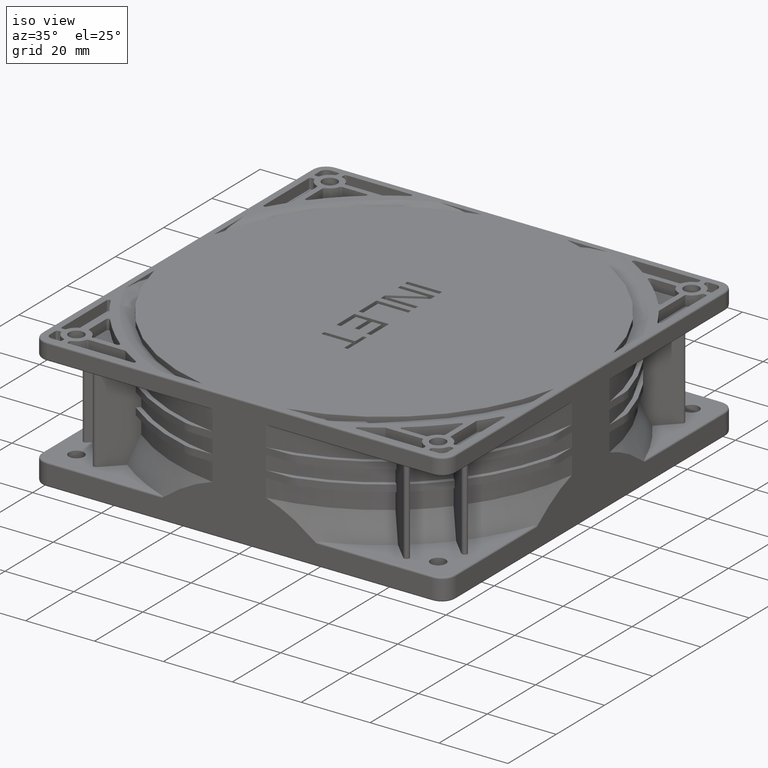
[diagram: clean part render]
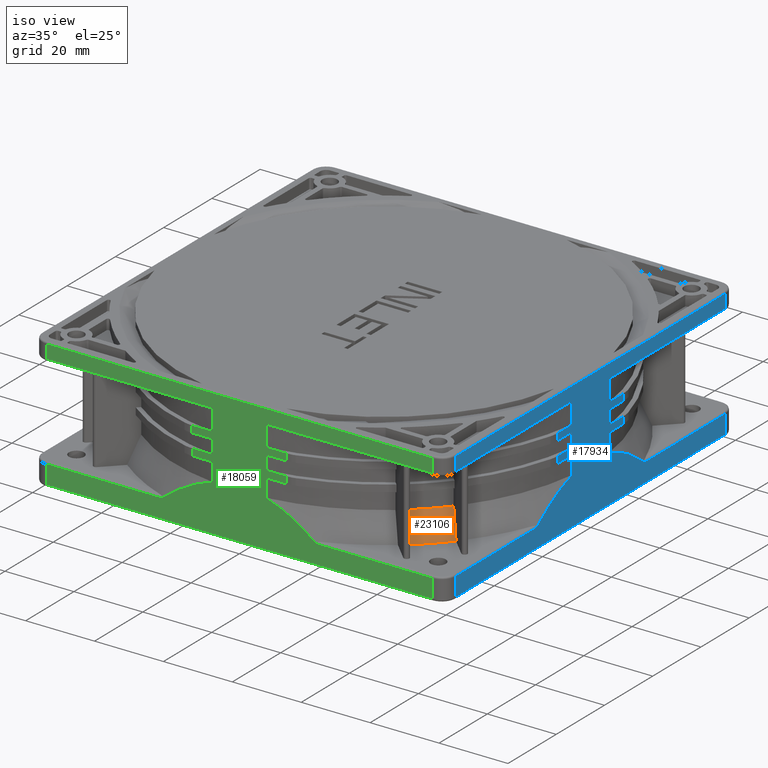
[diagram: same view with three faces highlighted in distinct colors, each labeled with its STEP entity id]
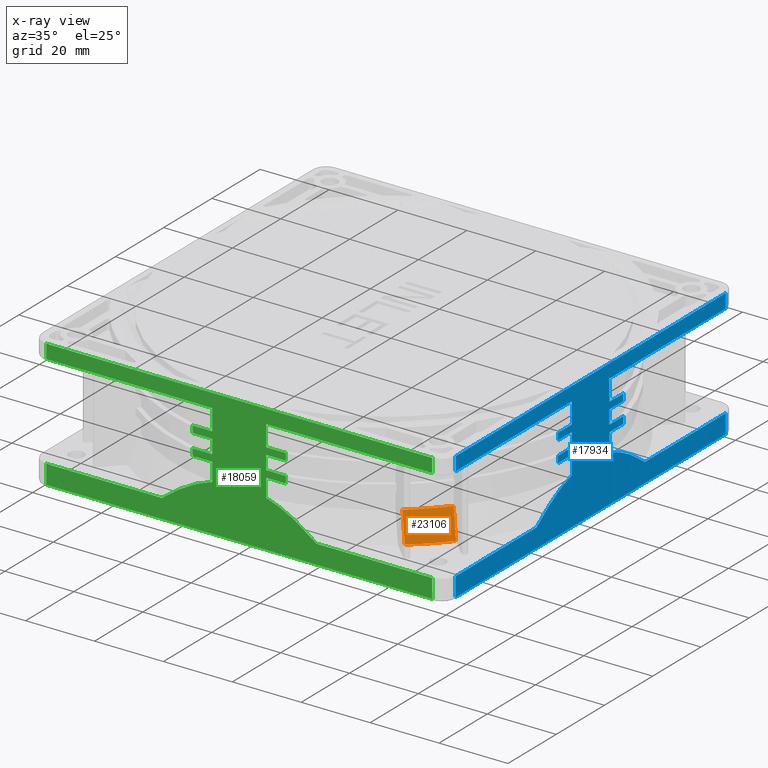
[diagram: x-ray of the same camera — body ghosted, the three highlighted faces saturated]
A machine part, iso view with three faces highlighted in distinct colors.
The next image is the same camera in x-ray (body ghosted, the three faces saturated) — at least one of them is partly hidden behind the body in this view.
Their STEP definitions:

[orange] entity #23106 — the highlighted conical surface has half-angle 23.777 deg.
#6506=CARTESIAN_POINT('',(0.E0,0.E0,-3.15E1));
#6507=DIRECTION('',(0.E0,0.E0,1.E0));
#6508=DIRECTION('',(6.351183784538E-1,-7.724148143E-1,0.E0));
#6509=AXIS2_PLACEMENT_3D('',#6506,#6507,#6508);
#6551=CARTESIAN_POINT('',(4.056038831387E1,-4.932851240058E1,-3.15E1));
#6552=CARTESIAN_POINT('',(4.029493449301E1,-4.906305857972E1,
-3.065192718397E1));
#6553=CARTESIAN_POINT('',(3.976398052172E1,-4.853210460843E1,
-2.895577999237E1));
#6554=CARTESIAN_POINT('',(3.896741004807E1,-4.773553413478E1,
-2.641155483238E1));
#6555=CARTESIAN_POINT('',(3.843626598393E1,-4.720439007064E1,
-2.471540440794E1));
#6556=CARTESIAN_POINT('',(3.817066742353E1,-4.693879151024E1,
-2.386733052655E1));
#6558=CARTESIAN_POINT('',(0.E0,0.E0,-2.386733052655E1));
#6559=DIRECTION('',(0.E0,0.E0,1.E0));
#6560=DIRECTION('',(6.309201227030E-1,-7.758477935577E-1,0.E0));
#6561=AXIS2_PLACEMENT_3D('',#6558,#6559,#6560);
#6563=CARTESIAN_POINT('',(4.693879151024E1,-3.817066742353E1,
-2.386733052655E1));
#6564=CARTESIAN_POINT('',(4.720439007064E1,-3.843626598393E1,
-2.471540440794E1));
#6565=CARTESIAN_POINT('',(4.773553413478E1,-3.896741004807E1,
-2.641155483238E1));
#6566=CARTESIAN_POINT('',(4.853210460843E1,-3.976398052172E1,
-2.895577999238E1));
#6567=CARTESIAN_POINT('',(4.906305857972E1,-4.029493449301E1,
-3.065192718397E1));
#6568=CARTESIAN_POINT('',(4.932851240059E1,-4.056038831388E1,-3.15E1));
#13536=CARTESIAN_POINT('',(4.056038831387E1,-4.932851240058E1,-3.15E1));
#13537=VERTEX_POINT('',#13536);
#13538=CARTESIAN_POINT('',(4.932851240059E1,-4.056038831388E1,-3.15E1));
#13539=VERTEX_POINT('',#13538);
#13590=CARTESIAN_POINT('',(3.817066742353E1,-4.693879151024E1,
-2.386733052655E1));
#13591=VERTEX_POINT('',#13590);
#13595=CARTESIAN_POINT('',(4.693879151024E1,-3.817066742353E1,
-2.386733052655E1));
#13597=VERTEX_POINT('',#13595);
#23094=CARTESIAN_POINT('',(0.E0,0.E0,-2.768366526327E1));
#23095=DIRECTION('',(0.E0,0.E0,-1.E0));
#23096=DIRECTION('',(-1.E0,0.E0,0.E0));
#23097=AXIS2_PLACEMENT_3D('',#23094,#23095,#23096);
#23098=CONICAL_SURFACE('',#23097,6.218136090048E1,2.377682886117E1);
#23100=ORIENTED_EDGE('',*,*,#23099,.T.);
#23101=ORIENTED_EDGE('',*,*,#23085,.T.);
#23102=ORIENTED_EDGE('',*,*,#23074,.T.);
#23103=ORIENTED_EDGE('',*,*,#22985,.F.);
#23104=EDGE_LOOP('',(#23100,#23101,#23102,#23103));
#23105=FACE_OUTER_BOUND('',#23104,.F.);
#23106=ADVANCED_FACE('',(#23105),#23098,.T.);
#6510=CIRCLE('',#6509,6.386272180096E1);
#6557=B_SPLINE_CURVE_WITH_KNOTS('',3,(#6551,#6552,#6553,#6554,#6555,#6556),
.UNSPECIFIED.,.F.,.F.,(4,1,1,4),(0.E0,3.333333333333E-1,6.666666666667E-1,1.E0),
.UNSPECIFIED.);
#6562=CIRCLE('',#6561,6.05E1);
#6569=B_SPLINE_CURVE_WITH_KNOTS('',3,(#6563,#6564,#6565,#6566,#6567,#6568),
.UNSPECIFIED.,.F.,.F.,(4,1,1,4),(0.E0,3.333333333333E-1,6.666666666667E-1,1.E0),
.UNSPECIFIED.);
#22985=EDGE_CURVE('',#13537,#13539,#6510,.T.);
#23074=EDGE_CURVE('',#13597,#13539,#6569,.T.);
#23085=EDGE_CURVE('',#13591,#13597,#6562,.T.);
#23099=EDGE_CURVE('',#13537,#13591,#6557,.T.);

[blue] entity #17934 — the highlighted planar face has unit normal (1, 0, 0).
#1833=DIRECTION('',(0.E0,1.E0,0.E0));
#1834=VECTOR('',#1833,1.12E2);
#1835=CARTESIAN_POINT('',(6.E1,-5.6E1,-3.75E1));
#1836=LINE('',#1835,#1834);
#2247=DIRECTION('',(0.E0,-3.591470555297E-13,1.E0));
#2248=VECTOR('',#2247,5.499999999999E0);
#2249=CARTESIAN_POINT('',(6.E1,5.599999999999E1,-3.75E1));
#2250=LINE('',#2249,#2248);
#2283=CARTESIAN_POINT('',(6.E1,-7.762087348129E0,-2.386733052655E1));
#2284=CARTESIAN_POINT('',(6.E1,-9.283628669880E0,-2.431042100628E1));
#2285=CARTESIAN_POINT('',(6.E1,-1.241059157785E1,-2.548243720019E1));
#2286=CARTESIAN_POINT('',(6.E1,-1.730609450031E1,-2.813692605179E1));
#2287=CARTESIAN_POINT('',(6.E1,-2.075004299778E1,-3.059810342166E1));
#2288=CARTESIAN_POINT('',(6.E1,-2.250848133923E1,-3.2E1));
#2294=DIRECTION('',(-3.840023991603E-14,-1.E0,-2.270069431500E-14));
#2295=VECTOR('',#2294,3.349151866077E1);
#2296=CARTESIAN_POINT('',(6.E1,-2.250848133923E1,-3.2E1));
#2297=LINE('',#2296,#2295);
#2313=DIRECTION('',(0.E0,0.E0,-1.E0));
#2314=VECTOR('',#2313,5.500000000001E0);
#2315=CARTESIAN_POINT('',(6.E1,-5.6E1,-3.2E1));
#2316=LINE('',#2315,#2314);
#2910=DIRECTION('',(0.E0,-1.E0,0.E0));
#2911=VECTOR('',#2910,1.12E2);
#2912=CARTESIAN_POINT('',(6.E1,5.6E1,-5.E-1));
#2913=LINE('',#2912,#2911);
#6710=DIRECTION('',(0.E0,0.E0,-1.E0));
#6711=VECTOR('',#6710,6.1E0);
#6712=CARTESIAN_POINT('',(6.E1,-7.762087348130E0,-4.5E0));
#6713=LINE('',#6712,#6711);
#6718=DIRECTION('',(0.E0,1.E0,0.E0));
#6719=VECTOR('',#6718,4.823791265187E1);
#6720=CARTESIAN_POINT('',(6.E1,-5.6E1,-4.5E0));
#6721=LINE('',#6720,#6719);
#6740=DIRECTION('',(0.E0,-1.E0,0.E0));
#6741=VECTOR('',#6740,5.774529659080E0);
#6742=CARTESIAN_POINT('',(6.E1,-7.762087348130E0,-1.06E1));
#6743=LINE('',#6742,#6741);
#6771=DIRECTION('',(0.E0,1.E0,0.E0));
#6772=VECTOR('',#6771,5.774529659080E0);
#6773=CARTESIAN_POINT('',(6.E1,-1.353661700721E1,-1.26E1));
#6774=LINE('',#6773,#6772);
#6780=DIRECTION('',(0.E0,0.E0,-1.E0));
#6781=VECTOR('',#6780,2.E0);
#6782=CARTESIAN_POINT('',(6.E1,-1.353661700721E1,-1.06E1));
#6783=LINE('',#6782,#6781);
#6788=DIRECTION('',(0.E0,0.E0,-1.E0));
#6789=VECTOR('',#6788,4.E0);
#6790=CARTESIAN_POINT('',(6.E1,-7.762087348130E0,-1.26E1));
#6791=LINE('',#6790,#6789);
#6806=DIRECTION('',(0.E0,-1.E0,0.E0));
#6807=VECTOR('',#6806,5.774529659080E0);
#6808=CARTESIAN_POINT('',(6.E1,-7.762087348130E0,-1.66E1));
#6809=LINE('',#6808,#6807);
#6837=DIRECTION('',(0.E0,1.E0,0.E0));
#6838=VECTOR('',#6837,5.774529659080E0);
#6839=CARTESIAN_POINT('',(6.E1,-1.353661700721E1,-1.86E1));
#6840=LINE('',#6839,#6838);
#6846=DIRECTION('',(0.E0,0.E0,-1.E0));
#6847=VECTOR('',#6846,2.E0);
#6848=CARTESIAN_POINT('',(6.E1,-1.353661700721E1,-1.66E1));
#6849=LINE('',#6848,#6847);
#6854=DIRECTION('',(2.090890698575E-13,2.512441242642E-14,-1.E0));
#6855=VECTOR('',#6854,5.267330526550E0);
#6856=CARTESIAN_POINT('',(6.E1,-7.762087348130E0,-1.86E1));
#6857=LINE('',#6856,#6855);
#6884=DIRECTION('',(0.E0,0.E0,-1.E0));
#6885=VECTOR('',#6884,4.E0);
#6886=CARTESIAN_POINT('',(6.E1,-5.6E1,-5.E-1));
#6887=LINE('',#6886,#6885);
#6985=DIRECTION('',(0.E0,1.E0,0.E0));
#6986=VECTOR('',#6985,4.823791265186E1);
#6987=CARTESIAN_POINT('',(6.E1,7.762087348130E0,-4.5E0));
#6988=LINE('',#6987,#6986);
#7021=DIRECTION('',(0.E0,0.E0,1.E0));
#7022=VECTOR('',#7021,6.1E0);
#7023=CARTESIAN_POINT('',(6.E1,7.762087348130E0,-1.06E1));
#7024=LINE('',#7023,#7022);
#7029=DIRECTION('',(-2.171828403036E-13,7.132635205622E-14,1.E0));
#7030=VECTOR('',#7029,5.267330526550E0);
#7031=CARTESIAN_POINT('',(6.E1,7.762087348129E0,-2.386733052655E1));
#7032=LINE('',#7031,#7030);
#7038=DIRECTION('',(0.E0,1.E0,0.E0));
#7039=VECTOR('',#7038,5.774529659080E0);
#7040=CARTESIAN_POINT('',(6.E1,7.762087348130E0,-1.86E1));
#7041=LINE('',#7040,#7039);
#7056=DIRECTION('',(0.E0,0.E0,1.E0));
#7057=VECTOR('',#7056,2.E0);
#7058=CARTESIAN_POINT('',(6.E1,1.353661700721E1,-1.86E1));
#7059=LINE('',#7058,#7057);
#7060=DIRECTION('',(0.E0,-1.E0,0.E0));
#7061=VECTOR('',#7060,5.774529659080E0);
#7062=CARTESIAN_POINT('',(6.E1,1.353661700721E1,-1.66E1));
#7063=LINE('',#7062,#7061);
#7087=DIRECTION('',(0.E0,0.E0,1.E0));
#7088=VECTOR('',#7087,4.E0);
#7089=CARTESIAN_POINT('',(6.E1,7.762087348130E0,-1.66E1));
#7090=LINE('',#7089,#7088);
#7096=DIRECTION('',(0.E0,1.E0,0.E0));
#7097=VECTOR('',#7096,5.774529659080E0);
#7098=CARTESIAN_POINT('',(6.E1,7.762087348130E0,-1.26E1));
#7099=LINE('',#7098,#7097);
#7114=DIRECTION('',(0.E0,0.E0,1.E0));
#7115=VECTOR('',#7114,2.E0);
#7116=CARTESIAN_POINT('',(6.E1,1.353661700721E1,-1.26E1));
#7117=LINE('',#7116,#7115);
#7118=DIRECTION('',(0.E0,-1.E0,0.E0));
#7119=VECTOR('',#7118,5.774529659080E0);
#7120=CARTESIAN_POINT('',(6.E1,1.353661700721E1,-1.06E1));
#7121=LINE('',#7120,#7119);
#7177=CARTESIAN_POINT('',(6.E1,2.250848133923E1,-3.2E1));
#7178=CARTESIAN_POINT('',(6.E1,2.122308320098E1,-3.097522977671E1));
#7179=CARTESIAN_POINT('',(6.E1,1.867433499462E1,-2.911235273317E1));
#7180=CARTESIAN_POINT('',(6.E1,1.544462140383E1,-2.709535955588E1));
#7181=CARTESIAN_POINT('',(6.E1,1.134312877839E1,-2.505695421931E1));
#7182=CARTESIAN_POINT('',(6.E1,8.948715364031E0,-2.421289036729E1));
#7183=CARTESIAN_POINT('',(6.E1,7.762087348129E0,-2.386733052655E1));
#7197=DIRECTION('',(3.840023991605E-14,-1.E0,1.633601366594E-14));
#7198=VECTOR('',#7197,3.349151866075E1);
#7199=CARTESIAN_POINT('',(6.E1,5.599999999998E1,-3.2E1));
#7200=LINE('',#7199,#7198);
#7686=DIRECTION('',(0.E0,1.875832822407E-12,1.E0));
#7687=VECTOR('',#7686,4.E0);
#7688=CARTESIAN_POINT('',(6.E1,5.599999999999E1,-4.5E0));
#7689=LINE('',#7688,#7687);
#12272=CARTESIAN_POINT('',(6.E1,7.762087348130E0,-1.86E1));
#12273=VERTEX_POINT('',#12272);
#12274=CARTESIAN_POINT('',(6.E1,7.762087348130E0,-2.386733052655E1));
#12275=VERTEX_POINT('',#12274);
#12276=CARTESIAN_POINT('',(6.E1,1.353661700721E1,-1.86E1));
#12277=VERTEX_POINT('',#12276);
#12280=VERTEX_POINT('',#2283);
#12281=VERTEX_POINT('',#2288);
#12282=CARTESIAN_POINT('',(6.E1,-7.762087348130E0,-1.86E1));
#12283=VERTEX_POINT('',#12282);
#12284=CARTESIAN_POINT('',(6.E1,-1.353661700721E1,-1.86E1));
#12285=VERTEX_POINT('',#12284);
#12286=CARTESIAN_POINT('',(6.E1,-1.353661700721E1,-1.66E1));
#12287=VERTEX_POINT('',#12286);
#12288=CARTESIAN_POINT('',(6.E1,-7.762087348130E0,-1.66E1));
#12289=VERTEX_POINT('',#12288);
#12290=CARTESIAN_POINT('',(6.E1,-7.762087348130E0,-1.26E1));
#12291=VERTEX_POINT('',#12290);
#12292=CARTESIAN_POINT('',(6.E1,-1.353661700721E1,-1.26E1));
#12293=VERTEX_POINT('',#12292);
#12294=CARTESIAN_POINT('',(6.E1,-1.353661700721E1,-1.06E1));
#12295=VERTEX_POINT('',#12294);
#12296=CARTESIAN_POINT('',(6.E1,-7.762087348130E0,-1.06E1));
#12297=VERTEX_POINT('',#12296);
#12298=CARTESIAN_POINT('',(6.E1,-7.762087348130E0,-4.5E0));
#12299=VERTEX_POINT('',#12298);
#12300=CARTESIAN_POINT('',(6.E1,-5.6E1,-4.5E0));
#12301=VERTEX_POINT('',#12300);
#12302=CARTESIAN_POINT('',(6.E1,-5.6E1,-5.E-1));
#12303=VERTEX_POINT('',#12302);
#12304=CARTESIAN_POINT('',(6.E1,5.6E1,-5.E-1));
#12305=VERTEX_POINT('',#12304);
#12306=CARTESIAN_POINT('',(6.E1,5.599999999999E1,-4.5E0));
#12307=VERTEX_POINT('',#12306);
#12308=CARTESIAN_POINT('',(6.E1,7.762087348130E0,-4.5E0));
#12309=VERTEX_POINT('',#12308);
#12310=CARTESIAN_POINT('',(6.E1,7.762087348130E0,-1.06E1));
#12311=VERTEX_POINT('',#12310);
#12312=CARTESIAN_POINT('',(6.E1,1.353661700721E1,-1.06E1));
#12313=VERTEX_POINT('',#12312);
#12314=CARTESIAN_POINT('',(6.E1,1.353661700721E1,-1.26E1));
#12315=VERTEX_POINT('',#12314);
#12316=CARTESIAN_POINT('',(6.E1,7.762087348130E0,-1.26E1));
#12317=VERTEX_POINT('',#12316);
#12318=CARTESIAN_POINT('',(6.E1,7.762087348130E0,-1.66E1));
#12319=VERTEX_POINT('',#12318);
#12320=CARTESIAN_POINT('',(6.E1,1.353661700721E1,-1.66E1));
#12321=VERTEX_POINT('',#12320);
#12322=VERTEX_POINT('',#7177);
#12323=CARTESIAN_POINT('',(6.E1,5.599999999998E1,-3.2E1));
#12324=VERTEX_POINT('',#12323);
#12325=CARTESIAN_POINT('',(6.E1,5.599999999999E1,-3.75E1));
#12326=VERTEX_POINT('',#12325);
#12327=CARTESIAN_POINT('',(6.E1,-5.6E1,-3.75E1));
#12328=VERTEX_POINT('',#12327);
#12329=CARTESIAN_POINT('',(6.E1,-5.6E1,-3.2E1));
#12330=VERTEX_POINT('',#12329);
#17869=CARTESIAN_POINT('',(6.E1,6.E1,-3.816648840647E1));
#17870=DIRECTION('',(1.E0,0.E0,0.E0));
#17871=DIRECTION('',(0.E0,0.E0,-1.E0));
#17872=AXIS2_PLACEMENT_3D('',#17869,#17870,#17871);
#17873=PLANE('',#17872);
#17875=ORIENTED_EDGE('',*,*,#17874,.F.);
#17877=ORIENTED_EDGE('',*,*,#17876,.F.);
#17879=ORIENTED_EDGE('',*,*,#17878,.F.);
#17881=ORIENTED_EDGE('',*,*,#17880,.F.);
#17883=ORIENTED_EDGE('',*,*,#17882,.F.);
#17885=ORIENTED_EDGE('',*,*,#17884,.F.);
#17887=ORIENTED_EDGE('',*,*,#17886,.F.);
#17889=ORIENTED_EDGE('',*,*,#17888,.F.);
#17891=ORIENTED_EDGE('',*,*,#17890,.F.);
#17893=ORIENTED_EDGE('',*,*,#17892,.F.);
#17895=ORIENTED_EDGE('',*,*,#17894,.F.);
#17897=ORIENTED_EDGE('',*,*,#17896,.F.);
#17899=ORIENTED_EDGE('',*,*,#17898,.F.);
#17901=ORIENTED_EDGE('',*,*,#17900,.F.);
#17903=ORIENTED_EDGE('',*,*,#17902,.F.);
#17905=ORIENTED_EDGE('',*,*,#17904,.F.);
#17907=ORIENTED_EDGE('',*,*,#17906,.F.);
#17909=ORIENTED_EDGE('',*,*,#17908,.F.);
#17911=ORIENTED_EDGE('',*,*,#17910,.F.);
#17913=ORIENTED_EDGE('',*,*,#17912,.F.);
#17915=ORIENTED_EDGE('',*,*,#17914,.F.);
#17917=ORIENTED_EDGE('',*,*,#17916,.F.);
#17919=ORIENTED_EDGE('',*,*,#17918,.F.);
#17921=ORIENTED_EDGE('',*,*,#17920,.F.);
#17923=ORIENTED_EDGE('',*,*,#17922,.F.);
#17925=ORIENTED_EDGE('',*,*,#17924,.F.);
#17926=ORIENTED_EDGE('',*,*,#17862,.F.);
#17927=ORIENTED_EDGE('',*,*,#16433,.F.);
#17929=ORIENTED_EDGE('',*,*,#17928,.F.);
#17931=ORIENTED_EDGE('',*,*,#17930,.F.);
#17932=EDGE_LOOP('',(#17875,#17877,#17879,#17881,#17883,#17885,#17887,#17889,
#17891,#17893,#17895,#17897,#17899,#17901,#17903,#17905,#17907,#17909,#17911,
#17913,#17915,#17917,#17919,#17921,#17923,#17925,#17926,#17927,#17929,#17931));
#17933=FACE_OUTER_BOUND('',#17932,.F.);
#17934=ADVANCED_FACE('',(#17933),#17873,.T.);
#2289=B_SPLINE_CURVE_WITH_KNOTS('',3,(#2283,#2284,#2285,#2286,#2287,#2288),
.UNSPECIFIED.,.F.,.F.,(4,1,1,4),(0.E0,3.333333333333E-1,6.666666666667E-1,1.E0),
.UNSPECIFIED.);
#7184=B_SPLINE_CURVE_WITH_KNOTS('',3,(#7177,#7178,#7179,#7180,#7181,#7182,
#7183),.UNSPECIFIED.,.F.,.F.,(4,1,1,1,4),(0.E0,2.5E-1,5.E-1,7.5E-1,1.E0),
.UNSPECIFIED.);
#16433=EDGE_CURVE('',#12328,#12326,#1836,.T.);
#17862=EDGE_CURVE('',#12326,#12324,#2250,.T.);
#17874=EDGE_CURVE('',#12280,#12281,#2289,.T.);
#17876=EDGE_CURVE('',#12283,#12280,#6857,.T.);
#17878=EDGE_CURVE('',#12285,#12283,#6840,.T.);
#17880=EDGE_CURVE('',#12287,#12285,#6849,.T.);
#17882=EDGE_CURVE('',#12289,#12287,#6809,.T.);
#17884=EDGE_CURVE('',#12291,#12289,#6791,.T.);
#17886=EDGE_CURVE('',#12293,#12291,#6774,.T.);
#17888=EDGE_CURVE('',#12295,#12293,#6783,.T.);
#17890=EDGE_CURVE('',#12297,#12295,#6743,.T.);
#17892=EDGE_CURVE('',#12299,#12297,#6713,.T.);
#17894=EDGE_CURVE('',#12301,#12299,#6721,.T.);
#17896=EDGE_CURVE('',#12303,#12301,#6887,.T.);
#17898=EDGE_CURVE('',#12305,#12303,#2913,.T.);
#17900=EDGE_CURVE('',#12307,#12305,#7689,.T.);
#17902=EDGE_CURVE('',#12309,#12307,#6988,.T.);
#17904=EDGE_CURVE('',#12311,#12309,#7024,.T.);
#17906=EDGE_CURVE('',#12313,#12311,#7121,.T.);
#17908=EDGE_CURVE('',#12315,#12313,#7117,.T.);
#17910=EDGE_CURVE('',#12317,#12315,#7099,.T.);
#17912=EDGE_CURVE('',#12319,#12317,#7090,.T.);
#17914=EDGE_CURVE('',#12321,#12319,#7063,.T.);
#17916=EDGE_CURVE('',#12277,#12321,#7059,.T.);
#17918=EDGE_CURVE('',#12273,#12277,#7041,.T.);
#17920=EDGE_CURVE('',#12275,#12273,#7032,.T.);
#17922=EDGE_CURVE('',#12322,#12275,#7184,.T.);
#17924=EDGE_CURVE('',#12324,#12322,#7200,.T.);
#17928=EDGE_CURVE('',#12330,#12328,#2316,.T.);
#17930=EDGE_CURVE('',#12281,#12330,#2297,.T.);

[green] entity #18059 — the highlighted planar face has unit normal (0, -1, 0).
#1856=DIRECTION('',(1.E0,0.E0,0.E0));
#1857=VECTOR('',#1856,1.119999999994E2);
#1858=CARTESIAN_POINT('',(-5.599999999996E1,-6.E1,-3.75E1));
#1859=LINE('',#1858,#1857);
#2317=DIRECTION('',(-5.108156322174E-11,0.E0,1.E0));
#2318=VECTOR('',#2317,5.5E0);
#2319=CARTESIAN_POINT('',(5.599999999948E1,-6.E1,-3.75E1));
#2320=LINE('',#2319,#2318);
#2321=DIRECTION('',(5.046145319779E-12,0.E0,-1.E0));
#2322=VECTOR('',#2321,5.500000000001E0);
#2323=CARTESIAN_POINT('',(-5.599999999999E1,-6.E1,-3.2E1));
#2324=LINE('',#2323,#2322);
#2933=DIRECTION('',(-1.E0,0.E0,0.E0));
#2934=VECTOR('',#2933,1.119999999999E2);
#2935=CARTESIAN_POINT('',(5.599999999994E1,-6.E1,-5.E-1));
#2936=LINE('',#2935,#2934);
#5690=DIRECTION('',(-1.E0,3.840023991605E-14,-1.994266603375E-14));
#5691=VECTOR('',#5690,3.349151866076E1);
#5692=CARTESIAN_POINT('',(-2.250848133923E1,-6.E1,-3.2E1));
#5693=LINE('',#5692,#5691);
#5935=DIRECTION('',(0.E0,0.E0,-1.E0));
#5936=VECTOR('',#5935,6.1E0);
#5937=CARTESIAN_POINT('',(-7.762087348130E0,-6.E1,-4.5E0));
#5938=LINE('',#5937,#5936);
#5943=DIRECTION('',(1.E0,0.E0,0.E0));
#5944=VECTOR('',#5943,4.823791265187E1);
#5945=CARTESIAN_POINT('',(-5.6E1,-6.E1,-4.5E0));
#5946=LINE('',#5945,#5944);
#5965=DIRECTION('',(-1.E0,0.E0,0.E0));
#5966=VECTOR('',#5965,5.774529659080E0);
#5967=CARTESIAN_POINT('',(-7.762087348130E0,-6.E1,-1.06E1));
#5968=LINE('',#5967,#5966);
#5996=DIRECTION('',(1.E0,0.E0,0.E0));
#5997=VECTOR('',#5996,5.774529659080E0);
#5998=CARTESIAN_POINT('',(-1.353661700721E1,-6.E1,-1.26E1));
#5999=LINE('',#5998,#5997);
#6005=DIRECTION('',(0.E0,0.E0,-1.E0));
#6006=VECTOR('',#6005,2.E0);
#6007=CARTESIAN_POINT('',(-1.353661700721E1,-6.E1,-1.06E1));
#6008=LINE('',#6007,#6006);
#6009=DIRECTION('',(0.E0,0.E0,-1.E0));
#6010=VECTOR('',#6009,4.E0);
#6011=CARTESIAN_POINT('',(-7.762087348130E0,-6.E1,-1.26E1));
#6012=LINE('',#6011,#6010);
#6031=DIRECTION('',(-1.E0,0.E0,0.E0));
#6032=VECTOR('',#6031,5.774529659080E0);
#6033=CARTESIAN_POINT('',(-7.762087348130E0,-6.E1,-1.66E1));
#6034=LINE('',#6033,#6032);
#6062=DIRECTION('',(1.E0,0.E0,0.E0));
#6063=VECTOR('',#6062,5.774529659081E0);
#6064=CARTESIAN_POINT('',(-1.353661700721E1,-6.E1,-1.86E1));
#6065=LINE('',#6064,#6063);
#6071=DIRECTION('',(0.E0,0.E0,-1.E0));
#6072=VECTOR('',#6071,2.E0);
#6073=CARTESIAN_POINT('',(-1.353661700721E1,-6.E1,-1.66E1));
#6074=LINE('',#6073,#6072);
#6079=DIRECTION('',(0.E0,-2.117869933395E-13,-1.E0));
#6080=VECTOR('',#6079,5.267330526550E0);
#6081=CARTESIAN_POINT('',(-7.762087348129E0,-6.E1,-1.86E1));
#6082=LINE('',#6081,#6080);
#6115=CARTESIAN_POINT('',(-7.762087348129E0,-6.E1,-2.386733052655E1));
#6116=CARTESIAN_POINT('',(-9.283628668077E0,-6.E1,-2.431042100576E1));
#6117=CARTESIAN_POINT('',(-1.241059157382E1,-6.E1,-2.548243719840E1));
#6118=CARTESIAN_POINT('',(-1.730609449672E1,-6.E1,-2.813692604941E1));
#6119=CARTESIAN_POINT('',(-2.075004299634E1,-6.E1,-3.059810342051E1));
#6120=CARTESIAN_POINT('',(-2.250848133923E1,-6.E1,-3.2E1));
#6148=DIRECTION('',(0.E0,0.E0,-1.E0));
#6149=VECTOR('',#6148,4.E0);
#6150=CARTESIAN_POINT('',(-5.6E1,-6.E1,-5.E-1));
#6151=LINE('',#6150,#6149);
#6249=DIRECTION('',(1.E0,0.E0,0.E0));
#6250=VECTOR('',#6249,4.823791265175E1);
#6251=CARTESIAN_POINT('',(7.762087348130E0,-6.E1,-4.5E0));
#6252=LINE('',#6251,#6250);
#6285=DIRECTION('',(0.E0,0.E0,1.E0));
#6286=VECTOR('',#6285,6.1E0);
#6287=CARTESIAN_POINT('',(7.762087348130E0,-6.E1,-1.06E1));
#6288=LINE('',#6287,#6286);
#6293=DIRECTION('',(0.E0,2.104380315985E-13,1.E0));
#6294=VECTOR('',#6293,5.267330526549E0);
#6295=CARTESIAN_POINT('',(7.762087348129E0,-6.E1,-2.386733052655E1));
#6296=LINE('',#6295,#6294);
#6302=DIRECTION('',(1.E0,1.230477246996E-14,0.E0));
#6303=VECTOR('',#6302,5.774529659081E0);
#6304=CARTESIAN_POINT('',(7.762087348129E0,-6.E1,-1.86E1));
#6305=LINE('',#6304,#6303);
#6320=DIRECTION('',(1.341149413747E-13,0.E0,1.E0));
#6321=VECTOR('',#6320,2.E0);
#6322=CARTESIAN_POINT('',(1.353661700721E1,-6.E1,-1.86E1));
#6323=LINE('',#6322,#6321);
#6324=DIRECTION('',(-1.E0,0.E0,0.E0));
#6325=VECTOR('',#6324,5.774529659080E0);
#6326=CARTESIAN_POINT('',(1.353661700721E1,-6.E1,-1.66E1));
#6327=LINE('',#6326,#6325);
#6351=DIRECTION('',(0.E0,0.E0,1.E0));
#6352=VECTOR('',#6351,4.E0);
#6353=CARTESIAN_POINT('',(7.762087348130E0,-6.E1,-1.66E1));
#6354=LINE('',#6353,#6352);
#6360=DIRECTION('',(1.E0,0.E0,0.E0));
#6361=VECTOR('',#6360,5.774529659080E0);
#6362=CARTESIAN_POINT('',(7.762087348130E0,-6.E1,-1.26E1));
#6363=LINE('',#6362,#6361);
#6378=DIRECTION('',(0.E0,0.E0,1.E0));
#6379=VECTOR('',#6378,2.E0);
#6380=CARTESIAN_POINT('',(1.353661700721E1,-6.E1,-1.26E1));
#6381=LINE('',#6380,#6379);
#6382=DIRECTION('',(-1.E0,0.E0,0.E0));
#6383=VECTOR('',#6382,5.774529659080E0);
#6384=CARTESIAN_POINT('',(1.353661700721E1,-6.E1,-1.06E1));
#6385=LINE('',#6384,#6383);
#6441=CARTESIAN_POINT('',(2.250848133923E1,-6.E1,-3.2E1));
#6442=CARTESIAN_POINT('',(2.122308293951E1,-6.E1,-3.097522956825E1));
#6443=CARTESIAN_POINT('',(1.867433437012E1,-6.E1,-2.911235217983E1));
#6444=CARTESIAN_POINT('',(1.544461807159E1,-6.E1,-2.709535771388E1));
#6445=CARTESIAN_POINT('',(1.134312795060E1,-6.E1,-2.505695397840E1));
#6446=CARTESIAN_POINT('',(8.948715029443E0,-6.E1,-2.421289026986E1));
#6447=CARTESIAN_POINT('',(7.762087348129E0,-6.E1,-2.386733052655E1));
#6461=DIRECTION('',(-1.E0,-3.818808389531E-14,1.782110581781E-14));
#6462=VECTOR('',#6461,3.349151865997E1);
#6463=CARTESIAN_POINT('',(5.599999999920E1,-6.E1,-3.2E1));
#6464=LINE('',#6463,#6462);
#6888=DIRECTION('',(1.499955715190E-11,0.E0,1.E0));
#6889=VECTOR('',#6888,4.E0);
#6890=CARTESIAN_POINT('',(5.599999999988E1,-6.E1,-4.5E0));
#6891=LINE('',#6890,#6889);
#12337=CARTESIAN_POINT('',(5.599999999948E1,-6.E1,-3.2E1));
#12338=VERTEX_POINT('',#12337);
#12341=CARTESIAN_POINT('',(5.599999999948E1,-6.E1,-3.75E1));
#12342=VERTEX_POINT('',#12341);
#12803=CARTESIAN_POINT('',(5.599999999976E1,-6.E1,-5.E-1));
#12804=VERTEX_POINT('',#12803);
#12805=CARTESIAN_POINT('',(-5.6E1,-6.E1,-5.E-1));
#12806=VERTEX_POINT('',#12805);
#12975=CARTESIAN_POINT('',(-5.599999999999E1,-6.E1,-3.2E1));
#12976=CARTESIAN_POINT('',(-5.599999999996E1,-6.E1,-3.75E1));
#12977=VERTEX_POINT('',#12975);
#12978=VERTEX_POINT('',#12976);
#12979=CARTESIAN_POINT('',(-2.250848133923E1,-6.E1,-3.2E1));
#12980=VERTEX_POINT('',#12979);
#12981=VERTEX_POINT('',#6115);
#12982=CARTESIAN_POINT('',(-7.762087348129E0,-6.E1,-1.86E1));
#12983=VERTEX_POINT('',#12982);
#12984=CARTESIAN_POINT('',(-1.353661700721E1,-6.E1,-1.86E1));
#12985=VERTEX_POINT('',#12984);
#12986=CARTESIAN_POINT('',(-1.353661700721E1,-6.E1,-1.66E1));
#12987=VERTEX_POINT('',#12986);
#12988=CARTESIAN_POINT('',(-7.762087348130E0,-6.E1,-1.66E1));
#12989=VERTEX_POINT('',#12988);
#12990=CARTESIAN_POINT('',(-7.762087348130E0,-6.E1,-1.26E1));
#12991=VERTEX_POINT('',#12990);
#12992=CARTESIAN_POINT('',(-1.353661700721E1,-6.E1,-1.26E1));
#12993=VERTEX_POINT('',#12992);
#12994=CARTESIAN_POINT('',(-1.353661700721E1,-6.E1,-1.06E1));
#12995=VERTEX_POINT('',#12994);
#12996=CARTESIAN_POINT('',(-7.762087348130E0,-6.E1,-1.06E1));
#12997=VERTEX_POINT('',#12996);
#12998=CARTESIAN_POINT('',(-7.762087348130E0,-6.E1,-4.5E0));
#12999=VERTEX_POINT('',#12998);
#13000=CARTESIAN_POINT('',(-5.6E1,-6.E1,-4.5E0));
#13001=VERTEX_POINT('',#13000);
#13002=CARTESIAN_POINT('',(5.599999999988E1,-6.E1,-4.5E0));
#13003=VERTEX_POINT('',#13002);
#13004=CARTESIAN_POINT('',(7.762087348130E0,-6.E1,-4.5E0));
#13005=VERTEX_POINT('',#13004);
#13006=CARTESIAN_POINT('',(7.762087348130E0,-6.E1,-1.06E1));
#13007=VERTEX_POINT('',#13006);
#13008=CARTESIAN_POINT('',(1.353661700721E1,-6.E1,-1.06E1));
#13009=VERTEX_POINT('',#13008);
#13010=CARTESIAN_POINT('',(1.353661700721E1,-6.E1,-1.26E1));
#13011=VERTEX_POINT('',#13010);
#13012=CARTESIAN_POINT('',(7.762087348130E0,-6.E1,-1.26E1));
#13013=VERTEX_POINT('',#13012);
#13014=CARTESIAN_POINT('',(7.762087348130E0,-6.E1,-1.66E1));
#13015=VERTEX_POINT('',#13014);
#13016=CARTESIAN_POINT('',(1.353661700721E1,-6.E1,-1.66E1));
#13017=VERTEX_POINT('',#13016);
#13018=CARTESIAN_POINT('',(1.353661700721E1,-6.E1,-1.86E1));
#13019=VERTEX_POINT('',#13018);
#13020=CARTESIAN_POINT('',(7.762087348129E0,-6.E1,-1.86E1));
#13021=VERTEX_POINT('',#13020);
#13022=CARTESIAN_POINT('',(7.762087348129E0,-6.E1,-2.386733052655E1));
#13023=VERTEX_POINT('',#13022);
#13024=VERTEX_POINT('',#6441);
#17994=CARTESIAN_POINT('',(-6.E1,-6.E1,-3.816648840647E1));
#17995=DIRECTION('',(0.E0,-1.E0,0.E0));
#17996=DIRECTION('',(0.E0,0.E0,-1.E0));
#17997=AXIS2_PLACEMENT_3D('',#17994,#17995,#17996);
#17998=PLANE('',#17997);
#17999=ORIENTED_EDGE('',*,*,#17988,.F.);
#18000=ORIENTED_EDGE('',*,*,#16461,.F.);
#18002=ORIENTED_EDGE('',*,*,#18001,.F.);
#18004=ORIENTED_EDGE('',*,*,#18003,.F.);
#18006=ORIENTED_EDGE('',*,*,#18005,.F.);
#18008=ORIENTED_EDGE('',*,*,#18007,.F.);
#18010=ORIENTED_EDGE('',*,*,#18009,.F.);
#18012=ORIENTED_EDGE('',*,*,#18011,.F.);
#18014=ORIENTED_EDGE('',*,*,#18013,.F.);
#18016=ORIENTED_EDGE('',*,*,#18015,.F.);
#18018=ORIENTED_EDGE('',*,*,#18017,.F.);
#18020=ORIENTED_EDGE('',*,*,#18019,.F.);
#18022=ORIENTED_EDGE('',*,*,#18021,.F.);
#18024=ORIENTED_EDGE('',*,*,#18023,.F.);
#18026=ORIENTED_EDGE('',*,*,#18025,.F.);
#18028=ORIENTED_EDGE('',*,*,#18027,.F.);
#18030=ORIENTED_EDGE('',*,*,#18029,.F.);
#18032=ORIENTED_EDGE('',*,*,#18031,.F.);
#18034=ORIENTED_EDGE('',*,*,#18033,.F.);
#18036=ORIENTED_EDGE('',*,*,#18035,.F.);
#18038=ORIENTED_EDGE('',*,*,#18037,.F.);
#18040=ORIENTED_EDGE('',*,*,#18039,.F.);
#18042=ORIENTED_EDGE('',*,*,#18041,.F.);
#18044=ORIENTED_EDGE('',*,*,#18043,.F.);
#18046=ORIENTED_EDGE('',*,*,#18045,.F.);
#18048=ORIENTED_EDGE('',*,*,#18047,.F.);
#18050=ORIENTED_EDGE('',*,*,#18049,.F.);
#18052=ORIENTED_EDGE('',*,*,#18051,.F.);
#18054=ORIENTED_EDGE('',*,*,#18053,.F.);
#18056=ORIENTED_EDGE('',*,*,#18055,.F.);
#18057=EDGE_LOOP('',(#17999,#18000,#18002,#18004,#18006,#18008,#18010,#18012,
#18014,#18016,#18018,#18020,#18022,#18024,#18026,#18028,#18030,#18032,#18034,
#18036,#18038,#18040,#18042,#18044,#18046,#18048,#18050,#18052,#18054,#18056));
#18058=FACE_OUTER_BOUND('',#18057,.F.);
#18059=ADVANCED_FACE('',(#18058),#17998,.T.);
#6121=B_SPLINE_CURVE_WITH_KNOTS('',3,(#6115,#6116,#6117,#6118,#6119,#6120),
.UNSPECIFIED.,.F.,.F.,(4,1,1,4),(0.E0,3.333333333333E-1,6.666666666667E-1,1.E0),
.UNSPECIFIED.);
#6448=B_SPLINE_CURVE_WITH_KNOTS('',3,(#6441,#6442,#6443,#6444,#6445,#6446,
#6447),.UNSPECIFIED.,.F.,.F.,(4,1,1,1,4),(0.E0,2.5E-1,5.E-1,7.5E-1,1.E0),
.UNSPECIFIED.);
#16461=EDGE_CURVE('',#12978,#12342,#1859,.T.);
#17988=EDGE_CURVE('',#12342,#12338,#2320,.T.);
#18001=EDGE_CURVE('',#12977,#12978,#2324,.T.);
#18003=EDGE_CURVE('',#12980,#12977,#5693,.T.);
#18005=EDGE_CURVE('',#12981,#12980,#6121,.T.);
#18007=EDGE_CURVE('',#12983,#12981,#6082,.T.);
#18009=EDGE_CURVE('',#12985,#12983,#6065,.T.);
#18011=EDGE_CURVE('',#12987,#12985,#6074,.T.);
#18013=EDGE_CURVE('',#12989,#12987,#6034,.T.);
#18015=EDGE_CURVE('',#12991,#12989,#6012,.T.);
#18017=EDGE_CURVE('',#12993,#12991,#5999,.T.);
#18019=EDGE_CURVE('',#12995,#12993,#6008,.T.);
#18021=EDGE_CURVE('',#12997,#12995,#5968,.T.);
#18023=EDGE_CURVE('',#12999,#12997,#5938,.T.);
#18025=EDGE_CURVE('',#13001,#12999,#5946,.T.);
#18027=EDGE_CURVE('',#12806,#13001,#6151,.T.);
#18029=EDGE_CURVE('',#12804,#12806,#2936,.T.);
#18031=EDGE_CURVE('',#13003,#12804,#6891,.T.);
#18033=EDGE_CURVE('',#13005,#13003,#6252,.T.);
#18035=EDGE_CURVE('',#13007,#13005,#6288,.T.);
#18037=EDGE_CURVE('',#13009,#13007,#6385,.T.);
#18039=EDGE_CURVE('',#13011,#13009,#6381,.T.);
#18041=EDGE_CURVE('',#13013,#13011,#6363,.T.);
#18043=EDGE_CURVE('',#13015,#13013,#6354,.T.);
#18045=EDGE_CURVE('',#13017,#13015,#6327,.T.);
#18047=EDGE_CURVE('',#13019,#13017,#6323,.T.);
#18049=EDGE_CURVE('',#13021,#13019,#6305,.T.);
#18051=EDGE_CURVE('',#13023,#13021,#6296,.T.);
#18053=EDGE_CURVE('',#13024,#13023,#6448,.T.);
#18055=EDGE_CURVE('',#12338,#13024,#6464,.T.);